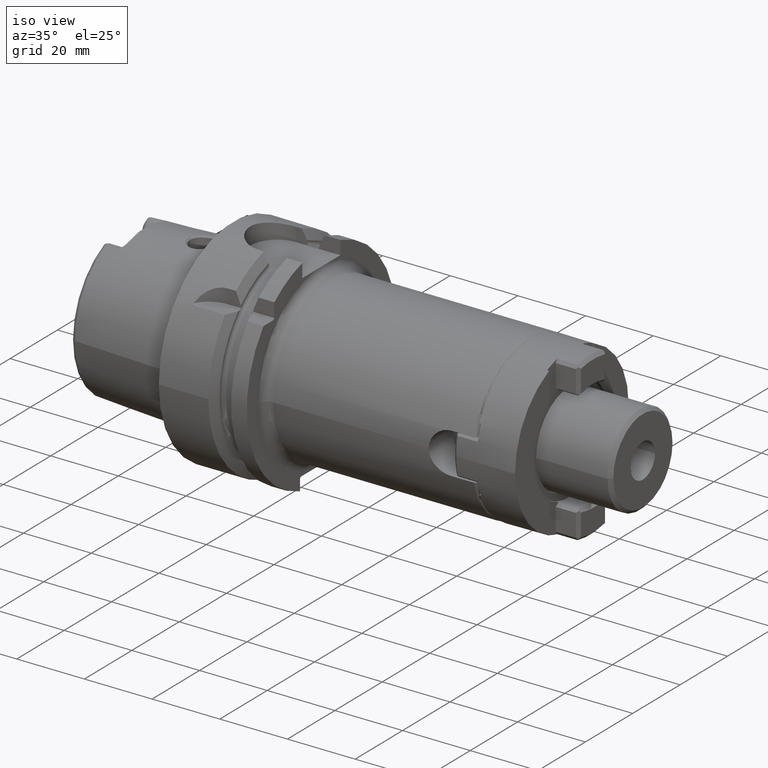
[diagram: clean part render]
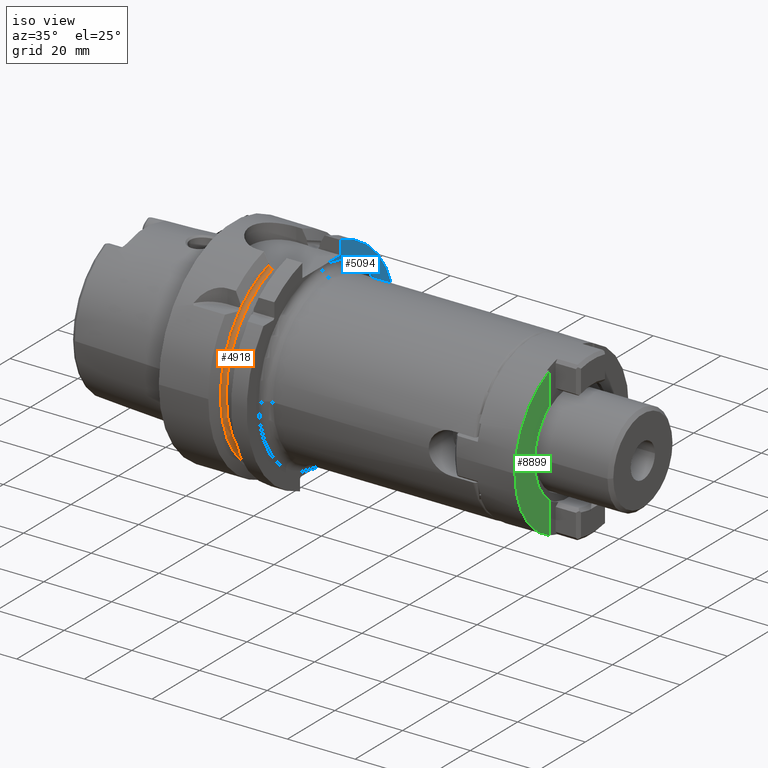
[diagram: same view with three faces highlighted in distinct colors, each labeled with its STEP entity id]
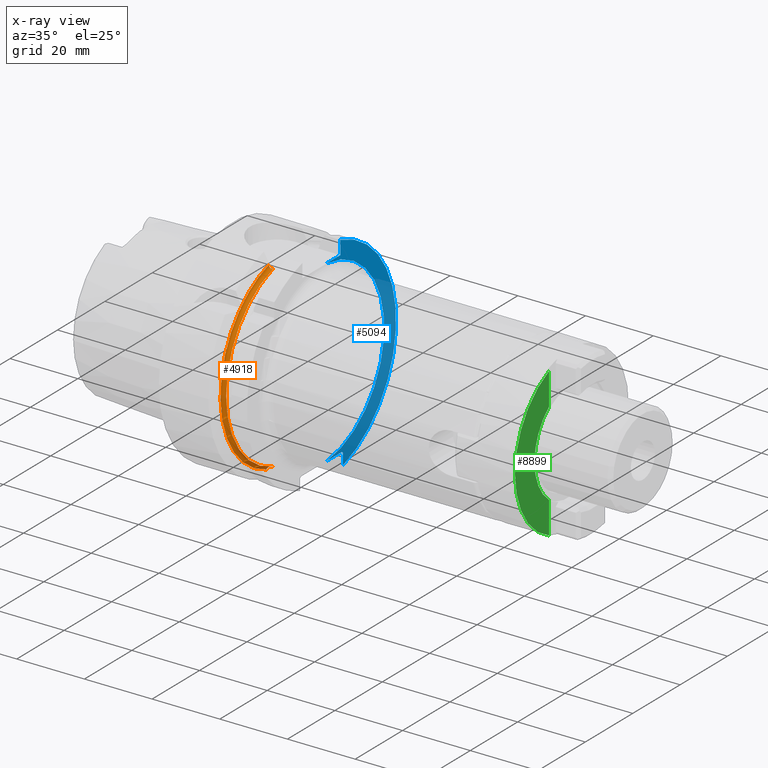
[diagram: x-ray of the same camera — body ghosted, the three highlighted faces saturated]
A machine part, iso view with three faces highlighted in distinct colors.
The next image is the same camera in x-ray (body ghosted, the three faces saturated) — at least one of them is partly hidden behind the body in this view.
Their STEP definitions:

[orange] entity #4918 — the highlighted toroidal blend (fillet) surface has major radius 28.5 mm and minor (blend) radius 1 mm.
#1206=CARTESIAN_POINT('',(1.613536526528E1,-1.985E1,2.025E1));
#1207=CARTESIAN_POINT('',(1.613550260110E1,-1.991709232524E1,2.018290767476E1));
#1208=CARTESIAN_POINT('',(1.613564025381E1,-2.005085131842E1,2.004914868158E1));
#1209=CARTESIAN_POINT('',(1.613550085848E1,-2.018375899049E1,1.991624100951E1));
#1210=CARTESIAN_POINT('',(1.613536526528E1,-2.025E1,1.985E1));
#1259=CARTESIAN_POINT('',(1.613536526528E1,-2.025E1,1.985E1));
#1260=CARTESIAN_POINT('',(1.613195006880E1,-2.028295639424E1,1.985E1));
#1261=CARTESIAN_POINT('',(1.612677449614E1,-2.034934342887E1,1.985E1));
#1262=CARTESIAN_POINT('',(1.6125E1,-2.041669538428E1,1.985E1));
#1263=CARTESIAN_POINT('',(1.6125E1,-2.045061123781E1,1.985E1));
#1265=CARTESIAN_POINT('',(1.6125E1,-1.985E1,2.045061123781E1));
#1266=CARTESIAN_POINT('',(1.6125E1,-1.985E1,2.041664671374E1));
#1267=CARTESIAN_POINT('',(1.612677957818E1,-1.985E1,2.034924596259E1));
#1268=CARTESIAN_POINT('',(1.613195508539E1,-1.985E1,2.028290798456E1));
#1269=CARTESIAN_POINT('',(1.613536526528E1,-1.985E1,2.025E1));
#1271=CARTESIAN_POINT('',(1.6125E1,0.E0,0.E0));
#1272=DIRECTION('',(-1.E0,0.E0,0.E0));
#1273=DIRECTION('',(0.E0,-6.964912280702E-1,7.175653065898E-1));
#1274=AXIS2_PLACEMENT_3D('',#1271,#1272,#1273);
#1276=CARTESIAN_POINT('',(1.670911310946E1,-8.0175E0,2.64E1));
#1277=CARTESIAN_POINT('',(1.665267827324E1,-8.0175E0,2.642697222064E1));
#1278=CARTESIAN_POINT('',(1.654577124256E1,-8.0175E0,2.649097879059E1));
#1279=CARTESIAN_POINT('',(1.639987833805E1,-8.0175E0,2.662132725065E1));
#1280=CARTESIAN_POINT('',(1.628095404298E1,-8.0175E0,2.677825869002E1));
#1281=CARTESIAN_POINT('',(1.619308374626E1,-8.0175E0,2.695355816935E1));
#1282=CARTESIAN_POINT('',(1.613735294040E1,-8.0175E0,2.714849666226E1));
#1283=CARTESIAN_POINT('',(1.6125E1,-8.0175E0,2.728116054633E1));
#1284=CARTESIAN_POINT('',(1.6125E1,-8.0175E0,2.734903460362E1));
#1286=CARTESIAN_POINT('',(1.7125E1,-7.7E0,2.64E1));
#1287=CARTESIAN_POINT('',(1.709801542874E1,-7.7E0,2.64E1));
#1288=CARTESIAN_POINT('',(1.704428225575E1,-7.707480820281E0,2.64E1));
#1289=CARTESIAN_POINT('',(1.696015728326E1,-7.744711750978E0,2.64E1));
#1290=CARTESIAN_POINT('',(1.688520085667E1,-7.800550899081E0,2.64E1));
#1291=CARTESIAN_POINT('',(1.681986238020E1,-7.866117342831E0,2.64E1));
#1292=CARTESIAN_POINT('',(1.676061128616E1,-7.939936204551E0,2.64E1));
#1293=CARTESIAN_POINT('',(1.672578491309E1,-7.991262830607E0,2.64E1));
#1294=CARTESIAN_POINT('',(1.670911310946E1,-8.0175E0,2.64E1));
#1296=CARTESIAN_POINT('',(1.644062313526E1,-8.6175E0,-2.64E1));
#1297=CARTESIAN_POINT('',(1.646078603879E1,-8.556510852770E0,-2.64E1));
#1298=CARTESIAN_POINT('',(1.650227386064E1,-8.439948273349E0,-2.64E1));
#1299=CARTESIAN_POINT('',(1.656805348335E1,-8.280864278287E0,-2.64E1));
#1300=CARTESIAN_POINT('',(1.663684500818E1,-8.138886080904E0,-2.64E1));
#1301=CARTESIAN_POINT('',(1.670898389576E1,-8.013810014671E0,-2.64E1));
#1302=CARTESIAN_POINT('',(1.678453793855E1,-7.906721865662E0,-2.64E1));
#1303=CARTESIAN_POINT('',(1.686362062870E1,-7.819127635624E0,-2.64E1));
#1304=CARTESIAN_POINT('',(1.694730615110E1,-7.751879650101E0,-2.64E1));
#1305=CARTESIAN_POINT('',(1.703817130297E1,-7.708637437381E0,-2.64E1));
#1306=CARTESIAN_POINT('',(1.709608612766E1,-7.7E0,-2.64E1));
#1307=CARTESIAN_POINT('',(1.7125E1,-7.7E0,-2.64E1));
#1309=CARTESIAN_POINT('',(1.6125E1,-9.0175E0,-2.703580392276E1));
#1310=CARTESIAN_POINT('',(1.6125E1,-9.0175E0,-2.699612992119E1));
#1311=CARTESIAN_POINT('',(1.612923563140E1,-9.0175E0,-2.691715797157E1));
#1312=CARTESIAN_POINT('',(1.614185450403E1,-9.0175E0,-2.683892189472E1));
#1313=CARTESIAN_POINT('',(1.615031694012E1,-9.0175E0,-2.68E1));
#1315=CARTESIAN_POINT('',(1.6125E1,0.E0,0.E0));
#1316=DIRECTION('',(-1.E0,0.E0,0.E0));
#1317=DIRECTION('',(0.E0,-3.164035087719E-1,-9.486246990443E-1));
#1318=AXIS2_PLACEMENT_3D('',#1315,#1316,#1317);
#2376=CARTESIAN_POINT('',(1.615031694012E1,-9.0175E0,-2.68E1));
#2377=CARTESIAN_POINT('',(1.616562111885E1,-8.964831842601E0,
-2.674733184260E1));
#2378=CARTESIAN_POINT('',(1.620853846437E1,-8.865085635001E0,
-2.664758563500E1));
#2379=CARTESIAN_POINT('',(1.630976642765E1,-8.727723429737E0,
-2.651022342974E1));
#2380=CARTESIAN_POINT('',(1.639403355348E1,-8.652180428545E0,
-2.643468042854E1));
#2381=CARTESIAN_POINT('',(1.644062313526E1,-8.6175E0,-2.64E1));
#2453=CARTESIAN_POINT('',(1.7125E1,0.E0,0.E0));
#2454=DIRECTION('',(-1.E0,0.E0,0.E0));
#2455=DIRECTION('',(0.E0,-2.8E-1,-9.6E-1));
#2456=AXIS2_PLACEMENT_3D('',#2453,#2454,#2455);
#3276=CARTESIAN_POINT('',(1.670911310946E1,-8.0175E0,2.64E1));
#3277=VERTEX_POINT('',#3276);
#3286=VERTEX_POINT('',#2376);
#3287=VERTEX_POINT('',#2381);
#3318=VERTEX_POINT('',#1206);
#3319=VERTEX_POINT('',#1210);
#3343=CARTESIAN_POINT('',(1.6125E1,-8.0175E0,2.734903460362E1));
#3345=VERTEX_POINT('',#3343);
#3351=VERTEX_POINT('',#1286);
#3373=CARTESIAN_POINT('',(1.6125E1,-9.0175E0,-2.703580392276E1));
#3375=VERTEX_POINT('',#3373);
#3376=CARTESIAN_POINT('',(1.7125E1,-7.7E0,-2.64E1));
#3378=VERTEX_POINT('',#3376);
#3409=CARTESIAN_POINT('',(1.6125E1,-2.045061123781E1,1.985E1));
#3411=VERTEX_POINT('',#3409);
#3413=CARTESIAN_POINT('',(1.6125E1,-1.985E1,2.045061123781E1));
#3415=VERTEX_POINT('',#3413);
#4890=CARTESIAN_POINT('',(1.7125E1,0.E0,0.E0));
#4891=DIRECTION('',(1.E0,0.E0,0.E0));
#4892=DIRECTION('',(0.E0,-1.E0,0.E0));
#4893=AXIS2_PLACEMENT_3D('',#4890,#4891,#4892);
#4894=TOROIDAL_SURFACE('',#4893,2.85E1,1.E0);
#4896=ORIENTED_EDGE('',*,*,#4895,.F.);
#4897=ORIENTED_EDGE('',*,*,#4858,.F.);
#4899=ORIENTED_EDGE('',*,*,#4898,.F.);
#4901=ORIENTED_EDGE('',*,*,#4900,.T.);
#4903=ORIENTED_EDGE('',*,*,#4902,.F.);
#4905=ORIENTED_EDGE('',*,*,#4904,.F.);
#4907=ORIENTED_EDGE('',*,*,#4906,.F.);
#4909=ORIENTED_EDGE('',*,*,#4908,.F.);
#4911=ORIENTED_EDGE('',*,*,#4910,.F.);
#4913=ORIENTED_EDGE('',*,*,#4912,.F.);
#4915=ORIENTED_EDGE('',*,*,#4914,.T.);
#4916=EDGE_LOOP('',(#4896,#4897,#4899,#4901,#4903,#4905,#4907,#4909,#4911,#4913,
#4915));
#4917=FACE_OUTER_BOUND('',#4916,.F.);
#4918=ADVANCED_FACE('',(#4917),#4894,.F.);
#1211=B_SPLINE_CURVE_WITH_KNOTS('',3,(#1206,#1207,#1208,#1209,#1210),
.UNSPECIFIED.,.F.,.F.,(4,1,4),(0.E0,5.E-1,1.E0),.UNSPECIFIED.);
#1264=B_SPLINE_CURVE_WITH_KNOTS('',3,(#1259,#1260,#1261,#1262,#1263),
.UNSPECIFIED.,.F.,.F.,(4,1,4),(0.E0,5.E-1,1.E0),.UNSPECIFIED.);
#1270=B_SPLINE_CURVE_WITH_KNOTS('',3,(#1265,#1266,#1267,#1268,#1269),
.UNSPECIFIED.,.F.,.F.,(4,1,4),(0.E0,5.E-1,1.E0),.UNSPECIFIED.);
#1275=CIRCLE('',#1274,2.85E1);
#1285=B_SPLINE_CURVE_WITH_KNOTS('',3,(#1276,#1277,#1278,#1279,#1280,#1281,#1282,
#1283,#1284),.UNSPECIFIED.,.F.,.F.,(4,1,1,1,1,1,4),(0.E0,1.666666666667E-1,
3.333333333333E-1,5.E-1,6.666666666667E-1,8.333333333333E-1,1.E0),
.UNSPECIFIED.);
#1295=B_SPLINE_CURVE_WITH_KNOTS('',3,(#1286,#1287,#1288,#1289,#1290,#1291,#1292,
#1293,#1294),.UNSPECIFIED.,.F.,.F.,(4,1,1,1,1,1,4),(0.E0,1.666666666667E-1,
3.333333333333E-1,5.E-1,6.666666666667E-1,8.333333333333E-1,1.E0),
.UNSPECIFIED.);
#1308=B_SPLINE_CURVE_WITH_KNOTS('',3,(#1296,#1297,#1298,#1299,#1300,#1301,#1302,
#1303,#1304,#1305,#1306,#1307),.UNSPECIFIED.,.F.,.F.,(4,1,1,1,1,1,1,1,1,4),
(0.E0,1.111111111111E-1,2.222222222222E-1,3.333333333333E-1,4.444444444444E-1,
5.555555555556E-1,6.666666666667E-1,7.777777777778E-1,8.888888888889E-1,1.E0),
.UNSPECIFIED.);
#1314=B_SPLINE_CURVE_WITH_KNOTS('',3,(#1309,#1310,#1311,#1312,#1313),
.UNSPECIFIED.,.F.,.F.,(4,1,4),(0.E0,5.E-1,1.E0),.UNSPECIFIED.);
#1319=CIRCLE('',#1318,2.85E1);
#2382=B_SPLINE_CURVE_WITH_KNOTS('',3,(#2376,#2377,#2378,#2379,#2380,#2381),
.UNSPECIFIED.,.F.,.F.,(4,1,1,4),(0.E0,3.333333333333E-1,6.666666666667E-1,1.E0),
.UNSPECIFIED.);
#2457=CIRCLE('',#2456,2.75E1);
#4858=EDGE_CURVE('',#3318,#3319,#1211,.T.);
#4895=EDGE_CURVE('',#3319,#3411,#1264,.T.);
#4898=EDGE_CURVE('',#3415,#3318,#1270,.T.);
#4900=EDGE_CURVE('',#3415,#3345,#1275,.T.);
#4902=EDGE_CURVE('',#3277,#3345,#1285,.T.);
#4904=EDGE_CURVE('',#3351,#3277,#1295,.T.);
#4906=EDGE_CURVE('',#3378,#3351,#2457,.T.);
#4908=EDGE_CURVE('',#3287,#3378,#1308,.T.);
#4910=EDGE_CURVE('',#3286,#3287,#2382,.T.);
#4912=EDGE_CURVE('',#3375,#3286,#1314,.T.);
#4914=EDGE_CURVE('',#3375,#3411,#1319,.T.);

[blue] entity #5094 — the highlighted planar face has unit normal (1, 0, 0).
#1343=DIRECTION('',(0.E0,7.071067811865E-1,-7.071067811866E-1));
#1344=VECTOR('',#1343,5.656854249492E-1);
#1345=CARTESIAN_POINT('',(2.6E1,8.6175E0,-2.64E1));
#1346=LINE('',#1345,#1344);
#1499=CARTESIAN_POINT('',(2.6E1,0.E0,0.E0));
#1500=DIRECTION('',(-1.E0,0.E0,0.E0));
#1501=DIRECTION('',(0.E0,8.679260296773E-2,9.962264020142E-1));
#1502=AXIS2_PLACEMENT_3D('',#1499,#1500,#1501);
#1504=DIRECTION('',(0.E0,1.E0,-6.033513550491E-8));
#1505=VECTOR('',#1504,5.717502623342E0);
#1506=CARTESIAN_POINT('',(2.6E1,2.299997376658E0,2.640000034497E1));
#1507=LINE('',#1506,#1505);
#1508=DIRECTION('',(0.E0,0.E0,-1.E0));
#1509=VECTOR('',#1508,4.062594993697E0);
#1510=CARTESIAN_POINT('',(2.6E1,8.0175E0,3.046259499370E1));
#1511=LINE('',#1510,#1509);
#1512=DIRECTION('',(0.E0,0.E0,1.E0));
#1513=VECTOR('',#1512,3.381694679888E0);
#1514=CARTESIAN_POINT('',(2.6E1,9.0175E0,-3.018169467989E1));
#1515=LINE('',#1514,#1513);
#1516=DIRECTION('',(0.E0,-1.E0,-4.909734874359E-8));
#1517=VECTOR('',#1516,6.317502358424E0);
#1518=CARTESIAN_POINT('',(2.6E1,8.6175E0,-2.64E1));
#1519=LINE('',#1518,#1517);
#2058=CARTESIAN_POINT('',(2.6E1,0.E0,0.E0));
#2059=DIRECTION('',(1.E0,0.E0,0.E0));
#2060=DIRECTION('',(0.E0,2.862698412698E-1,-9.581490374568E-1));
#2061=AXIS2_PLACEMENT_3D('',#2058,#2059,#2060);
#3290=CARTESIAN_POINT('',(2.6E1,8.6175E0,-2.64E1));
#3291=CARTESIAN_POINT('',(2.6E1,9.0175E0,-2.68E1));
#3292=VERTEX_POINT('',#3290);
#3293=VERTEX_POINT('',#3291);
#3334=CARTESIAN_POINT('',(2.6E1,8.0175E0,2.64E1));
#3336=VERTEX_POINT('',#3334);
#3394=CARTESIAN_POINT('',(2.6E1,9.0175E0,-3.018169467989E1));
#3395=CARTESIAN_POINT('',(2.6E1,8.0175E0,3.046259499370E1));
#3396=VERTEX_POINT('',#3394);
#3397=VERTEX_POINT('',#3395);
#3518=CARTESIAN_POINT('',(2.6E1,2.300003978645E0,2.639999965338E1));
#3519=CARTESIAN_POINT('',(2.6E1,2.300003578319E0,-2.639999968825E1));
#3520=VERTEX_POINT('',#3518);
#3521=VERTEX_POINT('',#3519);
#5077=CARTESIAN_POINT('',(2.6E1,0.E0,0.E0));
#5078=DIRECTION('',(1.E0,0.E0,0.E0));
#5079=DIRECTION('',(0.E0,-1.E0,0.E0));
#5080=AXIS2_PLACEMENT_3D('',#5077,#5078,#5079);
#5081=PLANE('',#5080);
#5082=ORIENTED_EDGE('',*,*,#5072,.F.);
#5084=ORIENTED_EDGE('',*,*,#5083,.T.);
#5086=ORIENTED_EDGE('',*,*,#5085,.F.);
#5088=ORIENTED_EDGE('',*,*,#5087,.F.);
#5089=ORIENTED_EDGE('',*,*,#4926,.T.);
#5090=ORIENTED_EDGE('',*,*,#4967,.F.);
#5091=ORIENTED_EDGE('',*,*,#5030,.T.);
#5092=EDGE_LOOP('',(#5082,#5084,#5086,#5088,#5089,#5090,#5091));
#5093=FACE_OUTER_BOUND('',#5092,.F.);
#5094=ADVANCED_FACE('',(#5093),#5081,.T.);
#1503=CIRCLE('',#1502,2.65E1);
#2062=CIRCLE('',#2061,3.15E1);
#4926=EDGE_CURVE('',#3396,#3293,#1515,.T.);
#4967=EDGE_CURVE('',#3292,#3293,#1346,.T.);
#5030=EDGE_CURVE('',#3292,#3521,#1519,.T.);
#5072=EDGE_CURVE('',#3520,#3521,#1503,.T.);
#5083=EDGE_CURVE('',#3520,#3336,#1507,.T.);
#5085=EDGE_CURVE('',#3397,#3336,#1511,.T.);
#5087=EDGE_CURVE('',#3396,#3397,#2062,.T.);

[green] entity #8899 — the highlighted planar face has unit normal (-1, 0, 0).
#7346=CARTESIAN_POINT('',(0.E0,1.2E1,0.E0));
#7347=DIRECTION('',(0.E0,1.E0,0.E0));
#7348=DIRECTION('',(-3.988541666667E-1,0.E0,-9.170143694254E-1));
#7349=AXIS2_PLACEMENT_3D('',#7346,#7347,#7348);
#7575=CARTESIAN_POINT('',(0.E0,1.2E1,0.E0));
#7576=DIRECTION('',(0.E0,1.E0,0.E0));
#7577=DIRECTION('',(-1.E0,0.E0,0.E0));
#7578=AXIS2_PLACEMENT_3D('',#7575,#7576,#7577);
#7623=CARTESIAN_POINT('',(0.E0,1.2E1,0.E0));
#7624=DIRECTION('',(0.E0,1.E0,0.E0));
#7625=DIRECTION('',(-1.E0,0.E0,0.E0));
#7626=AXIS2_PLACEMENT_3D('',#7623,#7624,#7625);
#7628=CARTESIAN_POINT('',(0.E0,1.2E1,0.E0));
#7629=DIRECTION('',(0.E0,1.E0,0.E0));
#7630=DIRECTION('',(-6.077777777778E-1,0.E0,-7.941071545072E-1));
#7631=AXIS2_PLACEMENT_3D('',#7628,#7629,#7630);
#7924=DIRECTION('',(0.E0,0.E0,1.E0));
#7925=VECTOR('',#7924,9.501157182721E0);
#7926=CARTESIAN_POINT('',(-9.5725E0,1.2E1,1.250718768349E1));
#7927=LINE('',#7926,#7925);
#7932=DIRECTION('',(0.E0,0.E0,1.E0));
#7933=VECTOR('',#7932,9.501157182721E0);
#7934=CARTESIAN_POINT('',(-9.5725E0,1.2E1,-2.200834486621E1));
#7935=LINE('',#7934,#7933);
#8233=CARTESIAN_POINT('',(-9.5725E0,1.2E1,-2.200834486621E1));
#8234=CARTESIAN_POINT('',(-2.4E1,1.2E1,0.E0));
#8235=VERTEX_POINT('',#8233);
#8236=VERTEX_POINT('',#8234);
#8239=CARTESIAN_POINT('',(-9.5725E0,1.2E1,2.200834486621E1));
#8240=VERTEX_POINT('',#8239);
#8255=CARTESIAN_POINT('',(-1.575E1,1.2E1,0.E0));
#8256=CARTESIAN_POINT('',(-9.5725E0,1.2E1,1.250718768349E1));
#8257=VERTEX_POINT('',#8255);
#8258=VERTEX_POINT('',#8256);
#8259=CARTESIAN_POINT('',(-9.5725E0,1.2E1,-1.250718768349E1));
#8260=VERTEX_POINT('',#8259);
#8882=CARTESIAN_POINT('',(-2.4E1,1.2E1,-2.882820374613E1));
#8883=DIRECTION('',(0.E0,-1.E0,0.E0));
#8884=DIRECTION('',(1.E0,0.E0,0.E0));
#8885=AXIS2_PLACEMENT_3D('',#8882,#8883,#8884);
#8886=PLANE('',#8885);
#8888=ORIENTED_EDGE('',*,*,#8887,.T.);
#8890=ORIENTED_EDGE('',*,*,#8889,.T.);
#8891=ORIENTED_EDGE('',*,*,#8846,.F.);
#8892=ORIENTED_EDGE('',*,*,#8603,.F.);
#8894=ORIENTED_EDGE('',*,*,#8893,.T.);
#8896=ORIENTED_EDGE('',*,*,#8895,.T.);
#8897=EDGE_LOOP('',(#8888,#8890,#8891,#8892,#8894,#8896));
#8898=FACE_OUTER_BOUND('',#8897,.F.);
#8899=ADVANCED_FACE('',(#8898),#8886,.F.);
#7350=CIRCLE('',#7349,2.4E1);
#7579=CIRCLE('',#7578,2.4E1);
#7627=CIRCLE('',#7626,1.575E1);
#7632=CIRCLE('',#7631,1.575E1);
#8603=EDGE_CURVE('',#8235,#8236,#7350,.T.);
#8846=EDGE_CURVE('',#8236,#8240,#7579,.T.);
#8887=EDGE_CURVE('',#8257,#8258,#7627,.T.);
#8889=EDGE_CURVE('',#8258,#8240,#7927,.T.);
#8893=EDGE_CURVE('',#8235,#8260,#7935,.T.);
#8895=EDGE_CURVE('',#8260,#8257,#7632,.T.);